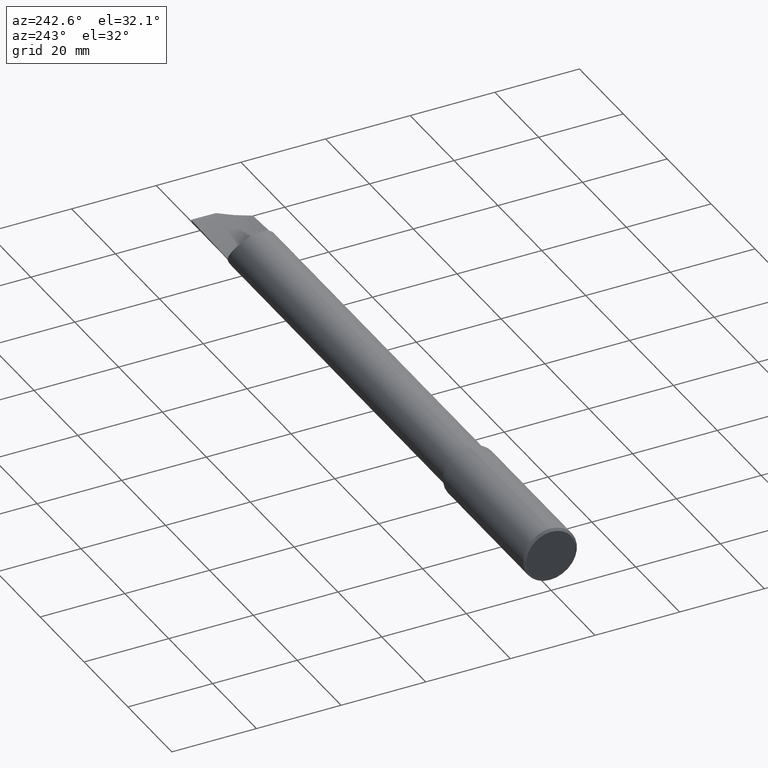
[diagram: clean part render]
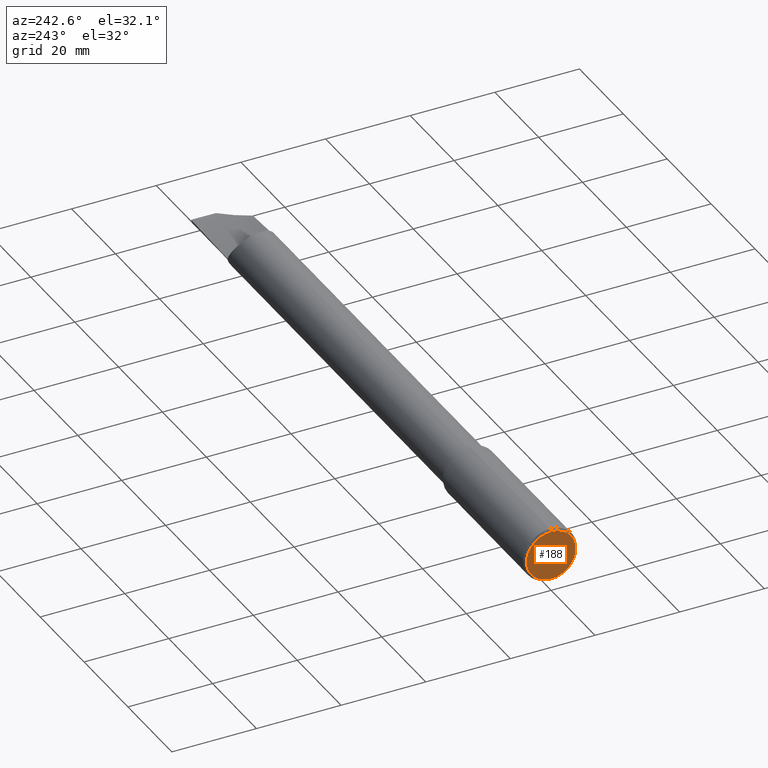
[diagram: same view with one face highlighted and labeled with its STEP entity id]
A machine part, auxiliary view. The second image highlights one B-rep face of the part: STEP entity #188.
In plain terms, the highlighted planar face has unit normal (1, 0, 0).
Its self-contained STEP definition (entity closure, byte-faithful):
#16 = ORIENTED_EDGE ( 'NONE', *, *, #280, .T. ) ;
#39 = CARTESIAN_POINT ( 'NONE',  ( 0.000000000000000000, 2.937315347754926265E-17, 0.2298499999999999155 ) ) ;
#66 = CARTESIAN_POINT ( 'NONE',  ( 0.000000000000000000, 0.000000000000000000, 0.000000000000000000 ) ) ;
#105 = ORIENTED_EDGE ( 'NONE', *, *, #232, .T. ) ;
#109 = VERTEX_POINT ( 'NONE', #314 ) ;
#176 = AXIS2_PLACEMENT_3D ( 'NONE', #548, #720, #257 ) ;
#188 = ADVANCED_FACE ( 'NONE', ( #372 ), #361, .F. ) ;
#226 = EDGE_LOOP ( 'NONE', ( #16, #105 ) ) ;
#232 = EDGE_CURVE ( 'NONE', #680, #109, #758, .T. ) ;
#240 = CARTESIAN_POINT ( 'NONE',  ( 0.000000000000000000, 0.000000000000000000, 0.000000000000000000 ) ) ;
#257 = DIRECTION ( 'NONE',  ( 0.000000000000000000, 0.000000000000000000, -1.000000000000000000 ) ) ;
#280 = EDGE_CURVE ( 'NONE', #109, #680, #707, .T. ) ;
#289 = AXIS2_PLACEMENT_3D ( 'NONE', #240, #601, #296 ) ;
#296 = DIRECTION ( 'NONE',  ( 0.000000000000000000, 0.000000000000000000, 1.000000000000000000 ) ) ;
#314 = CARTESIAN_POINT ( 'NONE',  ( 0.000000000000000000, 0.000000000000000000, -0.2298499999999999155 ) ) ;
#317 = AXIS2_PLACEMENT_3D ( 'NONE', #66, #484, #714 ) ;
#361 = PLANE ( 'NONE',  #176 ) ;
#372 = FACE_OUTER_BOUND ( 'NONE', #226, .T. ) ;
#484 = DIRECTION ( 'NONE',  ( -1.000000000000000000, -0.000000000000000000, -0.000000000000000000 ) ) ;
#548 = CARTESIAN_POINT ( 'NONE',  ( 0.000000000000000000, 0.000000000000000000, 0.000000000000000000 ) ) ;
#601 = DIRECTION ( 'NONE',  ( -1.000000000000000000, -0.000000000000000000, -0.000000000000000000 ) ) ;
#680 = VERTEX_POINT ( 'NONE', #39 ) ;
#707 = CIRCLE ( 'NONE', #317, 0.2298499999999999155 ) ;
#714 = DIRECTION ( 'NONE',  ( 0.000000000000000000, 0.000000000000000000, 1.000000000000000000 ) ) ;
#720 = DIRECTION ( 'NONE',  ( 1.000000000000000000, 0.000000000000000000, 0.000000000000000000 ) ) ;
#758 = CIRCLE ( 'NONE', #289, 0.2298499999999999155 ) ;